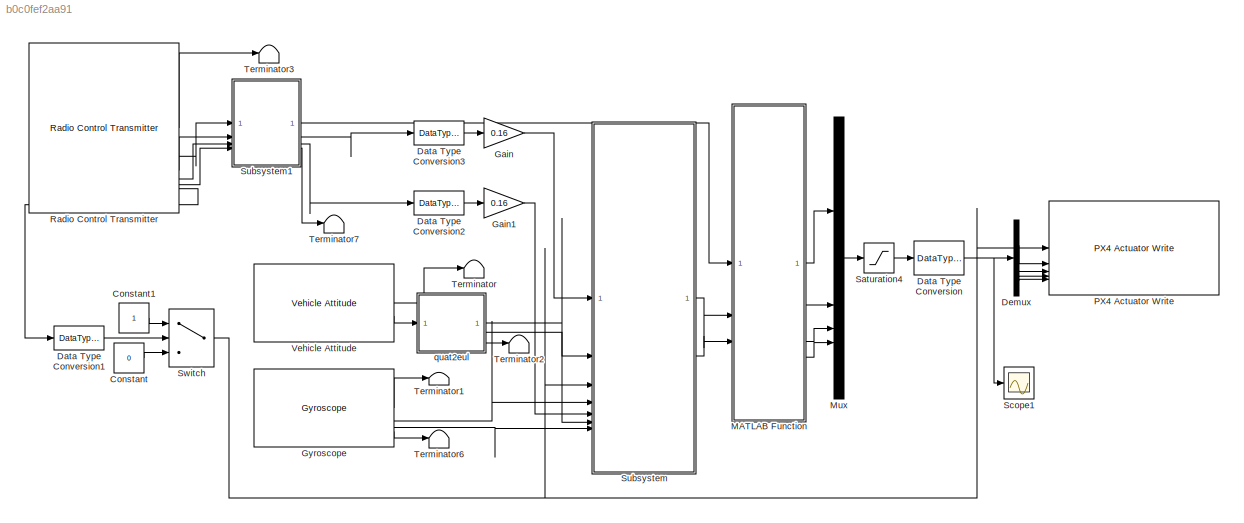
MODEL slx_b0c0fef2aa91
KIND model
CONFIG AbsTol = auto
CONFIG EnableMultiTasking = on
CONFIG FixedStep = 0.001
CONFIG MaxStep = auto
CONFIG MinStep = auto
CONFIG RelTol = 1e-3
CONFIG SampleTimeConstraint = Unconstrained
CONFIG SolverName = FixedStepAuto
CONFIG StartTime = 0.0
CONFIG StopTime = inf
BLOCK [Constant] Constant
  OutDataTypeStr = boolean
  Value = 0
BLOCK [Constant] Constant1
  OutDataTypeStr = boolean
BLOCK [DataTypeConversion] Data Type Conversion
  OutDataTypeStr = single
  RndMeth = Floor
  SaturateOnIntegerOverflow = off
BLOCK [DataTypeConversion] Data Type Conversion1
  OutDataTypeStr = single
  RndMeth = Floor
  SaturateOnIntegerOverflow = off
BLOCK [DataTypeConversion] Data Type Conversion2
  OutDataTypeStr = single
  RndMeth = Floor
  SaturateOnIntegerOverflow = off
BLOCK [DataTypeConversion] Data Type Conversion3
  OutDataTypeStr = single
  RndMeth = Floor
  SaturateOnIntegerOverflow = off
BLOCK [Demux] Demux
BLOCK [Gain] Gain
  Gain = 0.16
BLOCK [Gain] Gain1
  Gain = 0.16
BLOCK [Reference] Gyroscope  REF=px4Sensorslib/Gyroscope
  SourceBlock = px4Sensorslib/Gyroscope
  SourceType = PX4 Gyroscope
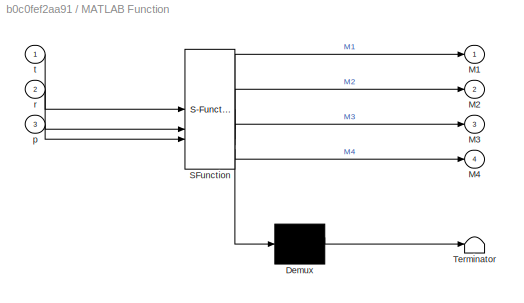
BLOCK [SubSystem] MATLAB Function
  ErrorFcn = Stateflow.Translate.translate
  PermitHierarchicalResolution = ExplicitOnly
  SFBlockType = MATLAB Function
  TreatAsAtomicUnit = on
BLOCK [Demux] MATLAB Function/ Demux 
  Outputs = 1
BLOCK [S-Function] MATLAB Function/ SFunction 
  EnableBusSupport = off
  FunctionName = sf_sfun
  PortCounts = [3 5]
  SFcnIsStateOwnerBlock = off
  SFunctionDeploymentMode = off
  Tag = Stateflow S-Function 2
BLOCK [Terminator] MATLAB Function/ Terminator 
BLOCK [Outport] MATLAB Function/M1
BLOCK [Outport] MATLAB Function/M2
  Port = 2
BLOCK [Outport] MATLAB Function/M3
  Port = 3
BLOCK [Outport] MATLAB Function/M4
  Port = 4
BLOCK [Inport] MATLAB Function/p
  Port = 3
BLOCK [Inport] MATLAB Function/r
  Port = 2
BLOCK [Inport] MATLAB Function/t
BLOCK [Mux] Mux
  DisplayOption = bar
BLOCK [Reference] PX4 Actuator Write  REF=px4Peripheralslib/PX4 Actuator Write
  SourceBlock = px4Peripheralslib/PX4 Actuator Write
  SourceType = px4.internal.block.PX4Actuators
BLOCK [Reference] Radio Control Transmitter  REF=px4Sensorslib/Radio Control Transmitter
  SourceBlock = px4Sensorslib/Radio Control Transmitter
  SourceType = PX4 Radio Control Transmitter
BLOCK [Saturate] Saturation4
  LowerLimit = 0
  UpperLimit = 1
BLOCK [Scope] Scope1
  ActiveDisplayYMaximum = 0.42208466280379647
  ActiveDisplayYMinimum = 0.37234214547850747
  DataLoggingVariableName = ScopeData3
  Floating = off
  GraphicalSettings = {"AxesScalingProperties":{"AlignXAxis":"Center","AlignYAxis":"Center","AutoScaleXAxisLimits":false,"AxesScaling":"Manual","AxesScalingNumUpdates":10,"ExpandOnly":true,"ScaleAxesLimitsAtStop":false,"XAxisDataRange":100,"YAxisDataRange":80},"DisplayProperties":{"ColorOrder":["auto","auto","auto","auto","auto","auto","auto","auto","auto","auto","auto","auto","auto","auto","auto","auto","auto","auto",...<+2371ch>
  MultipleDisplayCache = [{"MaxYLimMag":1.125,"MaxYLimReal":0.42208466280379647,"MinYLimMag":0,"MinYLimReal":0.37234214547850747,"PlotAsMagnitudePhase":false,"ShowGrid":true,"ShowLegend":true,"Title":"%<SignalLabel>","YLabel":""}]
  NumInputPorts = 1
  ScopeFrameLocation = window
  ShowLegend = on
  WasSavedAsWebScope = on
  WindowPosition = [1.000000,49.000000,1536.000000,793.000000,]
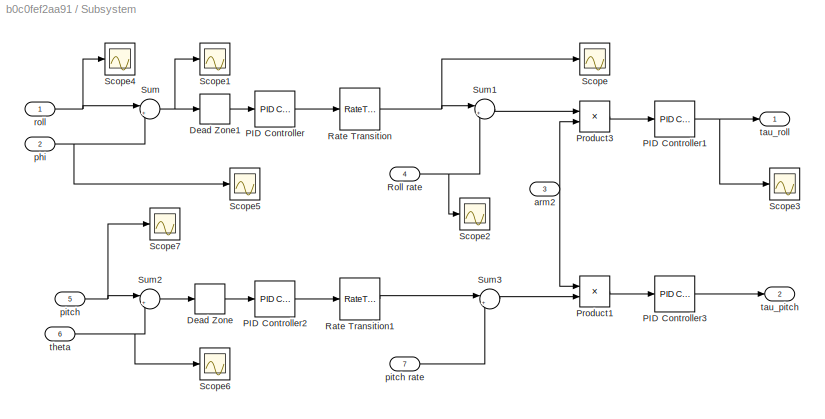
BLOCK [SubSystem] Subsystem
BLOCK [DeadZone] Subsystem/Dead Zone
  LowerValue = -0.02
  UpperValue = 0.02
BLOCK [DeadZone] Subsystem/Dead Zone1
  LowerValue = -0.02
  UpperValue = 0.02
BLOCK [Reference] Subsystem/PID Controller  REF=slpidlib/PID Controller
  LibrarySourceBlock = simulink/Continuous/PID Controller
  SourceBlock = slpidlib/PID Controller
  SourceType = PID 1dof
BLOCK [Reference] Subsystem/PID Controller1  REF=slpidlib/PID Controller
  LibrarySourceBlock = simulink/Continuous/PID Controller
  SourceBlock = slpidlib/PID Controller
  SourceType = PID 1dof
BLOCK [Reference] Subsystem/PID Controller2  REF=slpidlib/PID Controller
  LibrarySourceBlock = simulink/Continuous/PID Controller
  SourceBlock = slpidlib/PID Controller
  SourceType = PID 1dof
BLOCK [Reference] Subsystem/PID Controller3  REF=slpidlib/PID Controller
  LibrarySourceBlock = simulink/Continuous/PID Controller
  SourceBlock = slpidlib/PID Controller
  SourceType = PID 1dof
BLOCK [Product] Subsystem/Product1
BLOCK [Product] Subsystem/Product3
BLOCK [RateTransition] Subsystem/Rate Transition
  OutPortSampleTime = 0.001
BLOCK [RateTransition] Subsystem/Rate Transition1
  OutPortSampleTime = 0.001
BLOCK [Inport] Subsystem/Roll rate
  Port = 4
BLOCK [Scope] Subsystem/Scope
  ActiveDisplayYMaximum = 0.062193159013986588
  ActiveDisplayYMinimum = -0.066639374941587448
  DataLogging = on
  DataLoggingSaveFormat = Structure With Time
  DataLoggingVariableName = des_rollrate
  Floating = off
  GraphicalSettings = {"Style":{"BackgroundColor":[0.12941176470588237,0.12941176470588237,0.12941176470588237],"AxesColor":[0.07058823529411765,0.07058823529411765,0.07058823529411765],"LabelsColor":[0.8509803921568627,0.8509803921568627,0.8509803921568627],"PreserveColors":false,"Visible":[true],"LineStyle":["-"],"LineWidth":[1.5],"BarWidth":[0.9],"LineColor":["auto"],"LineFaceAlpha":[1],"LineEdgeAlpha":[1],"Marker":...<+1895ch>
  MultipleDisplayCache = [{"MaxYLimMag":0.066639374941587448,"MaxYLimReal":0.062193159013986588,"MinYLimMag":0,"MinYLimReal":-0.066639374941587448,"PlotAsMagnitudePhase":false,"ShowGrid":true,"ShowLegend":false,"Title":"%<SignalLabel>","YLabel":""}]
  NumInputPorts = 1
  ScopeFrameLocation = window
  WasSavedAsWebScope = on
  WindowPosition = [261.000000,235.000000,560.000000,420.000000,]
BLOCK [Scope] Subsystem/Scope1
  ActiveDisplayYMaximum = 0.65147780627012253
  ActiveDisplayYMinimum = -0.65983980149030685
  DataLogging = on
  DataLoggingSaveFormat = Structure With Time
  DataLoggingVariableName = error1
  Floating = off
  GraphicalSettings = {"Style":{"BackgroundColor":[0.12941176470588237,0.12941176470588237,0.12941176470588237],"AxesColor":[0.07058823529411765,0.07058823529411765,0.07058823529411765],"LabelsColor":[0.8509803921568627,0.8509803921568627,0.8509803921568627],"PreserveColors":false,"Visible":[true],"LineStyle":["-"],"LineWidth":[1.5],"BarWidth":[0.9],"LineColor":["auto"],"LineFaceAlpha":[1],"LineEdgeAlpha":[1],"Marker":...<+1991ch>
  MultipleDisplayCache = [{"MaxYLimMag":0.65983980149030685,"MaxYLimReal":0.65147780627012253,"MinYLimMag":0,"MinYLimReal":-0.65983980149030685,"PlotAsMagnitudePhase":false,"ShowGrid":true,"ShowLegend":false,"Title":"%<SignalLabel>","YLabel":""}]
  NumInputPorts = 1
  ScopeFrameLocation = window
  WasSavedAsWebScope = on
  WindowPosition = [661.000000,230.000000,560.000000,420.000000,]
BLOCK [Scope] Subsystem/Scope2
  ActiveDisplayYMaximum = 0.047981280833482742
  ActiveDisplayYMinimum = -0.058989014476537704
  DataLogging = on
  DataLoggingSaveFormat = Structure With Time
  DataLoggingVariableName = rollrate
  Floating = off
  GraphicalSettings = {"Style":{"BackgroundColor":[0.12941176470588237,0.12941176470588237,0.12941176470588237],"AxesColor":[0.07058823529411765,0.07058823529411765,0.07058823529411765],"LabelsColor":[0.8509803921568627,0.8509803921568627,0.8509803921568627],"PreserveColors":false,"Visible":[true],"LineStyle":["-"],"LineWidth":[1.5],"BarWidth":[0.9],"LineColor":["auto"],"LineFaceAlpha":[1],"LineEdgeAlpha":[1],"Marker":...<+2014ch>
  MultipleDisplayCache = [{"MaxYLimMag":0.058989014476537704,"MaxYLimReal":0.047981280833482742,"MinYLimMag":0,"MinYLimReal":-0.058989014476537704,"PlotAsMagnitudePhase":false,"ShowGrid":true,"ShowLegend":false,"Title":"%<SignalLabel>","YLabel":""}]
  NumInputPorts = 1
  ScopeFrameLocation = window
  WasSavedAsWebScope = on
  WindowPosition = [301.000000,277.000000,560.000000,420.000000,]
BLOCK [Scope] Subsystem/Scope3
  ActiveDisplayYMaximum = 1.25
  ActiveDisplayYMinimum = -1.25
  DataLogging = on
  DataLoggingSaveFormat = Structure With Time
  DataLoggingVariableName = tau_roll
  Floating = off
  GraphicalSettings = {"Style":{"BackgroundColor":[0.12941176470588237,0.12941176470588237,0.12941176470588237],"AxesColor":[0.07058823529411765,0.07058823529411765,0.07058823529411765],"LabelsColor":[0.8509803921568627,0.8509803921568627,0.8509803921568627],"PreserveColors":false,"Visible":[true],"LineStyle":["-"],"LineWidth":[1.5],"BarWidth":[0.9],"LineColor":["auto"],"LineFaceAlpha":[1],"LineEdgeAlpha":[1],"Marker":...<+1918ch>
  MultipleDisplayCache = [{"MaxYLimMag":1.25,"MaxYLimReal":1.25,"MinYLimMag":0,"MinYLimReal":-1.25,"PlotAsMagnitudePhase":false,"ShowGrid":true,"ShowLegend":false,"Title":"%<SignalLabel>","YLabel":""}]
  NumInputPorts = 1
  ScopeFrameLocation = window
  WasSavedAsWebScope = on
  WindowPosition = [488.000000,222.000000,560.000000,420.000000,]
BLOCK [Scope] Subsystem/Scope4
  ActiveDisplayYMaximum = 0.10656582657247782
  ActiveDisplayYMinimum = -0.10880342219024897
  DataLogging = on
  DataLoggingSaveFormat = Structure With Time
  DataLoggingVariableName = des_roll
  Floating = off
  GraphicalSettings = {"AxesScalingProperties":{"AlignXAxis":"Center","AlignYAxis":"Center","AutoScaleXAxisLimits":false,"AxesScaling":"Manual","AxesScalingNumUpdates":10,"ExpandOnly":true,"ScaleAxesLimitsAtStop":false,"XAxisDataRange":100,"YAxisDataRange":80},"DisplayProperties":{"ColorOrder":["auto","auto","auto","auto","auto","auto","auto","auto","auto","auto","auto","auto","auto","auto","auto","auto","auto","auto",...<+2006ch>
  MultipleDisplayCache = [{"MaxYLimMag":0.10880342219024897,"MaxYLimReal":0.10656582657247782,"MinYLimMag":0,"MinYLimReal":-0.10880342219024897,"PlotAsMagnitudePhase":false,"ShowGrid":true,"ShowLegend":false,"Title":"%<SignalLabel>","YLabel":""}]
  NumInputPorts = 1
  ScopeFrameLocation = window
  WasSavedAsWebScope = on
  WindowPosition = [586.000000,191.000000,560.000000,420.000000,]
BLOCK [Scope] Subsystem/Scope5
  ActiveDisplayYMaximum = 0.454759169369936
  ActiveDisplayYMinimum = 0.45466272160410881
  DataLogging = on
  DataLoggingSaveFormat = Structure With Time
  DataLoggingVariableName = quatroll
  Floating = off
  GraphicalSettings = {"Style":{"BackgroundColor":[0.12941176470588237,0.12941176470588237,0.12941176470588237],"AxesColor":[0.07058823529411765,0.07058823529411765,0.07058823529411765],"LabelsColor":[0.8509803921568627,0.8509803921568627,0.8509803921568627],"PreserveColors":false,"Visible":[true],"LineStyle":["-"],"LineWidth":[1.5],"BarWidth":[0.9],"LineColor":["auto"],"LineFaceAlpha":[1],"LineEdgeAlpha":[1],"Marker":...<+1991ch>
  MultipleDisplayCache = [{"MaxYLimMag":0.454759169369936,"MaxYLimReal":0.454759169369936,"MinYLimMag":0.45466272160410881,"MinYLimReal":0.45466272160410881,"PlotAsMagnitudePhase":false,"ShowGrid":true,"ShowLegend":false,"Title":"%<SignalLabel>","YLabel":""}]
  NumInputPorts = 1
  ScopeFrameLocation = window
  WasSavedAsWebScope = on
  WindowPosition = [93.000000,235.000000,560.000000,402.000000,]
BLOCK [Scope] Subsystem/Scope6
  ActiveDisplayYMaximum = -0.68081527203321457
  ActiveDisplayYMinimum = -0.68107999116182327
  DataLogging = on
  DataLoggingSaveFormat = Structure With Time
  DataLoggingVariableName = quatpitch
  Floating = off
  GraphicalSettings = {"Style":{"BackgroundColor":[0.12941176470588237,0.12941176470588237,0.12941176470588237],"AxesColor":[0.07058823529411765,0.07058823529411765,0.07058823529411765],"LabelsColor":[0.8509803921568627,0.8509803921568627,0.8509803921568627],"PreserveColors":false,"Visible":[true],"LineStyle":["-"],"LineWidth":[1.5],"BarWidth":[0.9],"LineColor":["auto"],"LineFaceAlpha":[1],"LineEdgeAlpha":[1],"Marker":...<+1997ch>
  MultipleDisplayCache = [{"MaxYLimMag":0.68107999116182327,"MaxYLimReal":-0.68081527203321457,"MinYLimMag":0,"MinYLimReal":-0.68107999116182327,"PlotAsMagnitudePhase":false,"ShowGrid":true,"ShowLegend":false,"Title":"%<SignalLabel>","YLabel":""}]
  NumInputPorts = 1
  ScopeFrameLocation = window
  WasSavedAsWebScope = on
  WindowPosition = [419.000000,359.000000,560.000000,420.000000,]
BLOCK [Scope] Subsystem/Scope7
  ActiveDisplayYMaximum = 1.2156594097614288
  ActiveDisplayYMinimum = -1.246184378862381
  DataLogging = on
  DataLoggingSaveFormat = Structure With Time
  DataLoggingVariableName = des_pitch
  Floating = off
  GraphicalSettings = {"Style":{"BackgroundColor":[0.12941176470588237,0.12941176470588237,0.12941176470588237],"AxesColor":[0.07058823529411765,0.07058823529411765,0.07058823529411765],"LabelsColor":[0.8509803921568627,0.8509803921568627,0.8509803921568627],"PreserveColors":false,"Visible":[true],"LineStyle":["-"],"LineWidth":[1.5],"BarWidth":[0.9],"LineColor":["auto"],"LineFaceAlpha":[1],"LineEdgeAlpha":[1],"Marker":...<+1898ch>
  MultipleDisplayCache = [{"MaxYLimMag":1.246184378862381,"MaxYLimReal":1.2156594097614288,"MinYLimMag":0,"MinYLimReal":-1.246184378862381,"PlotAsMagnitudePhase":false,"ShowGrid":true,"ShowLegend":false,"Title":"%<SignalLabel>","YLabel":""}]
  NumInputPorts = 1
  ScopeFrameLocation = window
  WasSavedAsWebScope = on
  WindowPosition = [463.000000,127.000000,560.000000,420.000000,]
BLOCK [Sum] Subsystem/Sum
  Inputs = |+-
BLOCK [Sum] Subsystem/Sum1
  Inputs = |+-
BLOCK [Sum] Subsystem/Sum2
  Inputs = |+-
BLOCK [Sum] Subsystem/Sum3
  Inputs = |+-
BLOCK [Inport] Subsystem/arm2
  Port = 3
BLOCK [Inport] Subsystem/phi
  Port = 2
BLOCK [Inport] Subsystem/pitch
  Port = 5
BLOCK [Inport] Subsystem/pitch rate
  Port = 7
BLOCK [Inport] Subsystem/roll
BLOCK [Outport] Subsystem/tau_pitch
  Port = 2
BLOCK [Outport] Subsystem/tau_roll
BLOCK [Inport] Subsystem/theta
  Port = 6
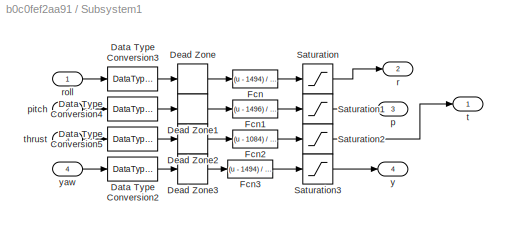
BLOCK [SubSystem] Subsystem1
BLOCK [DataTypeConversion] Subsystem1/Data Type Conversion2
  OutDataTypeStr = single
  RndMeth = Floor
  SaturateOnIntegerOverflow = off
BLOCK [DataTypeConversion] Subsystem1/Data Type Conversion3
  OutDataTypeStr = single
  RndMeth = Floor
  SaturateOnIntegerOverflow = off
BLOCK [DataTypeConversion] Subsystem1/Data Type Conversion4
  OutDataTypeStr = single
  RndMeth = Floor
  SaturateOnIntegerOverflow = off
BLOCK [DataTypeConversion] Subsystem1/Data Type Conversion5
  OutDataTypeStr = single
  RndMeth = Floor
  SaturateOnIntegerOverflow = off
BLOCK [DeadZone] Subsystem1/Dead Zone
  LowerValue = -10
  UpperValue = 10
BLOCK [DeadZone] Subsystem1/Dead Zone1
  LowerValue = -10
  UpperValue = 10
BLOCK [DeadZone] Subsystem1/Dead Zone2
  LowerValue = -5
  UpperValue = 5
BLOCK [DeadZone] Subsystem1/Dead Zone3
  LowerValue = -10
  UpperValue = 10
BLOCK [Fcn] Subsystem1/Fcn
  Expr = (u - 1494) / 409.5
BLOCK [Fcn] Subsystem1/Fcn1
  Expr = (u - 1496) / 409.5
BLOCK [Fcn] Subsystem1/Fcn2
  Expr = (u - 1084) / 819
BLOCK [Fcn] Subsystem1/Fcn3
  Expr = (u - 1494) / 409.5
BLOCK [Saturate] Subsystem1/Saturation
  LowerLimit = -1
  UpperLimit = 1
BLOCK [Saturate] Subsystem1/Saturation1
  LowerLimit = -1
  UpperLimit = 1
BLOCK [Saturate] Subsystem1/Saturation2
  LowerLimit = 0
  UpperLimit = 1
BLOCK [Saturate] Subsystem1/Saturation3
  LowerLimit = -1
  UpperLimit = 1
BLOCK [Outport] Subsystem1/p
  Port = 3
BLOCK [Inport] Subsystem1/pitch
  Port = 2
BLOCK [Outport] Subsystem1/r
  Port = 2
BLOCK [Inport] Subsystem1/roll
BLOCK [Outport] Subsystem1/t
BLOCK [Inport] Subsystem1/thrust
  Port = 3
BLOCK [Outport] Subsystem1/y
  Port = 4
BLOCK [Inport] Subsystem1/yaw
  Port = 4
BLOCK [Switch] Switch
  Criteria = u2 > Threshold
  InputSameDT = off
  SaturateOnIntegerOverflow = off
  Threshold = 1500
BLOCK [Terminator] Terminator
BLOCK [Terminator] Terminator1
BLOCK [Terminator] Terminator2
BLOCK [Terminator] Terminator3
BLOCK [Terminator] Terminator6
BLOCK [Terminator] Terminator7
BLOCK [Reference] Vehicle Attitude  REF=px4Sensorslib/Vehicle Attitude
  SourceBlock = px4Sensorslib/Vehicle Attitude
  SourceType = PX4 Vehicle Attitude
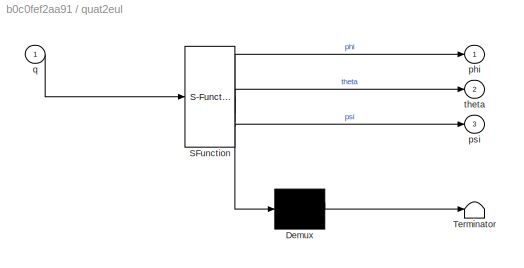
BLOCK [SubSystem] quat2eul
  ErrorFcn = Stateflow.Translate.translate
  PermitHierarchicalResolution = ExplicitOnly
  SFBlockType = MATLAB Function
  TreatAsAtomicUnit = on
BLOCK [Demux] quat2eul/ Demux 
  Outputs = 1
BLOCK [S-Function] quat2eul/ SFunction 
  EnableBusSupport = off
  FunctionName = sf_sfun
  PortCounts = [1 4]
  SFcnIsStateOwnerBlock = off
  SFunctionDeploymentMode = off
  Tag = Stateflow S-Function 10
BLOCK [Terminator] quat2eul/ Terminator 
BLOCK [Outport] quat2eul/phi
  VectorParamsAs1DForOutWhenUnconnected = off
BLOCK [Outport] quat2eul/psi
  Port = 3
  VectorParamsAs1DForOutWhenUnconnected = off
BLOCK [Inport] quat2eul/q
BLOCK [Outport] quat2eul/theta
  Port = 2
  VectorParamsAs1DForOutWhenUnconnected = off
LINE Constant1:1 -> Switch:1
LINE Constant:1 -> Switch:3
LINE Data Type Conversion1:1 -> Switch:2
LINE Data Type Conversion2:1 -> Gain1:1
LINE Data Type Conversion3:1 -> Gain:1
NET Data Type Conversion:1 -> Demux:1, Scope1:1
LINE Demux:1 -> PX4 Actuator Write:2
LINE Demux:2 -> PX4 Actuator Write:3
LINE Demux:3 -> PX4 Actuator Write:4
LINE Demux:4 -> PX4 Actuator Write:5
LINE Gain1:1 -> Subsystem:5
LINE Gain:1 -> Subsystem:1
LINE Gyroscope:1 -> Terminator1:1
LINE Gyroscope:2 -> Subsystem:4
LINE Gyroscope:3 -> Subsystem:7
LINE Gyroscope:4 -> Terminator6:1
LINE MATLAB Function:1 -> Mux:1
LINE MATLAB Function:2 -> Mux:2
LINE MATLAB Function:3 -> Mux:3
LINE MATLAB Function:4 -> Mux:4
LINE Mux:1 -> Saturation4:1
LINE Radio Control Transmitter:1 -> Terminator3:1
LINE Radio Control Transmitter:2 -> Subsystem1:1
LINE Radio Control Transmitter:3 -> Subsystem1:2
LINE Radio Control Transmitter:4 -> Subsystem1:3
LINE Radio Control Transmitter:5 -> Subsystem1:4
LINE Radio Control Transmitter:6 -> Data Type Conversion1:1
LINE Saturation4:1 -> Data Type Conversion:1
LINE Subsystem/Dead Zone1:1 -> Subsystem/PID Controller:1
LINE Subsystem/Dead Zone:1 -> Subsystem/PID Controller2:1
NET Subsystem/PID Controller1:1 -> Subsystem/Scope3:1, Subsystem/tau_roll:1
LINE Subsystem/PID Controller2:1 -> Subsystem/Rate Transition1:1
LINE Subsystem/PID Controller3:1 -> Subsystem/tau_pitch:1
LINE Subsystem/PID Controller:1 -> Subsystem/Rate Transition:1
LINE Subsystem/Product1:1 -> Subsystem/PID Controller3:1
LINE Subsystem/Product3:1 -> Subsystem/PID Controller1:1
LINE Subsystem/Rate Transition1:1 -> Subsystem/Sum3:1
NET Subsystem/Rate Transition:1 -> Subsystem/Scope:1, Subsystem/Sum1:1
NET Subsystem/Roll rate:1 -> Subsystem/Scope2:1, Subsystem/Sum1:2
LINE Subsystem/Sum1:1 -> Subsystem/Product3:1
LINE Subsystem/Sum2:1 -> Subsystem/Dead Zone:1
LINE Subsystem/Sum3:1 -> Subsystem/Product1:2
NET Subsystem/Sum:1 -> Subsystem/Dead Zone1:1, Subsystem/Scope1:1
NET Subsystem/arm2:1 -> Subsystem/Product1:1, Subsystem/Product3:2
NET Subsystem/phi:1 -> Subsystem/Scope5:1, Subsystem/Sum:2
LINE Subsystem/pitch rate:1 -> Subsystem/Sum3:2
NET Subsystem/pitch:1 -> Subsystem/Scope7:1, Subsystem/Sum2:1
NET Subsystem/roll:1 -> Subsystem/Scope4:1, Subsystem/Sum:1
NET Subsystem/theta:1 -> Subsystem/Scope6:1, Subsystem/Sum2:2
LINE Subsystem1/Data Type Conversion2:1 -> Subsystem1/Dead Zone3:1
LINE Subsystem1/Data Type Conversion3:1 -> Subsystem1/Dead Zone:1
LINE Subsystem1/Data Type Conversion4:1 -> Subsystem1/Dead Zone1:1
LINE Subsystem1/Data Type Conversion5:1 -> Subsystem1/Dead Zone2:1
LINE Subsystem1/Dead Zone1:1 -> Subsystem1/Fcn1:1
LINE Subsystem1/Dead Zone2:1 -> Subsystem1/Fcn2:1
LINE Subsystem1/Dead Zone3:1 -> Subsystem1/Fcn3:1
LINE Subsystem1/Dead Zone:1 -> Subsystem1/Fcn:1
LINE Subsystem1/Fcn1:1 -> Subsystem1/Saturation1:1
LINE Subsystem1/Fcn2:1 -> Subsystem1/Saturation2:1
LINE Subsystem1/Fcn3:1 -> Subsystem1/Saturation3:1
LINE Subsystem1/Fcn:1 -> Subsystem1/Saturation:1
LINE Subsystem1/Saturation1:1 -> Subsystem1/p:1
LINE Subsystem1/Saturation2:1 -> Subsystem1/t:1
LINE Subsystem1/Saturation3:1 -> Subsystem1/y:1
LINE Subsystem1/Saturation:1 -> Subsystem1/r:1
LINE Subsystem1/pitch:1 -> Subsystem1/Data Type Conversion4:1
LINE Subsystem1/roll:1 -> Subsystem1/Data Type Conversion3:1
LINE Subsystem1/thrust:1 -> Subsystem1/Data Type Conversion5:1
LINE Subsystem1/yaw:1 -> Subsystem1/Data Type Conversion2:1
LINE Subsystem1:1 -> MATLAB Function:1
LINE Subsystem1:2 -> Data Type Conversion3:1
LINE Subsystem1:3 -> Data Type Conversion2:1
LINE Subsystem1:4 -> Terminator7:1
LINE Subsystem:1 -> MATLAB Function:2
LINE Subsystem:2 -> MATLAB Function:3
NET Switch:1 -> PX4 Actuator Write:1, Subsystem:3
LINE Vehicle Attitude:1 -> Terminator:1
LINE Vehicle Attitude:2 -> quat2eul:1
LINE quat2eul:1 -> Subsystem:2
LINE quat2eul:2 -> Subsystem:6
LINE quat2eul:3 -> Terminator2:1
note: NET lines group one-source signal fan-out (src -> all destinations, sorted); 1:1 wires keep LINE
CHART MATLAB Function states=1 transitions=1
  STATE_LABEL 'eML_blk_kernel()'
  STATE_LABEL 'SCRIPT:\nfunction [M1,M2,M3,M4]  = fcn(t,r, p)\nM1 = t - 0.707107*r + 0.707107*p;\nM2 = t + 0.707107*r - 0.707107*p;\nM3 = t + 0.707107*r + 0.707107*p;\nM4 = t - 0.707107*r - 0.707107*p;'
CHART quat2eul states=1 transitions=1
  STATE_LABEL 'eML_blk_kernel()'
  STATE_LABEL 'SCRIPT:\nfunction [phi,theta,psi] = quat2eul(q)\n\n% Quaternion conversion to Euler angles based on the PX4 Firmware v1.10.2\n% release.\n\nphi = atan2(2*(q(1)*q(2) + q(3)* q(4)), q(1)^2 - q(2)^2 - q(3)^2 + q(4)^2);\ntheta = asin(-2*(q(2)*q(4) - q(1)*q(3)));\npsi = atan2(2*(q(2)*q(3) + q(1)* q(4)), q(1)^2 + q(2)^2 - q(3)^2 - q(4)^2);\nend'
CHART  states=0 transitions=0
CHART  states=0 transitions=0
